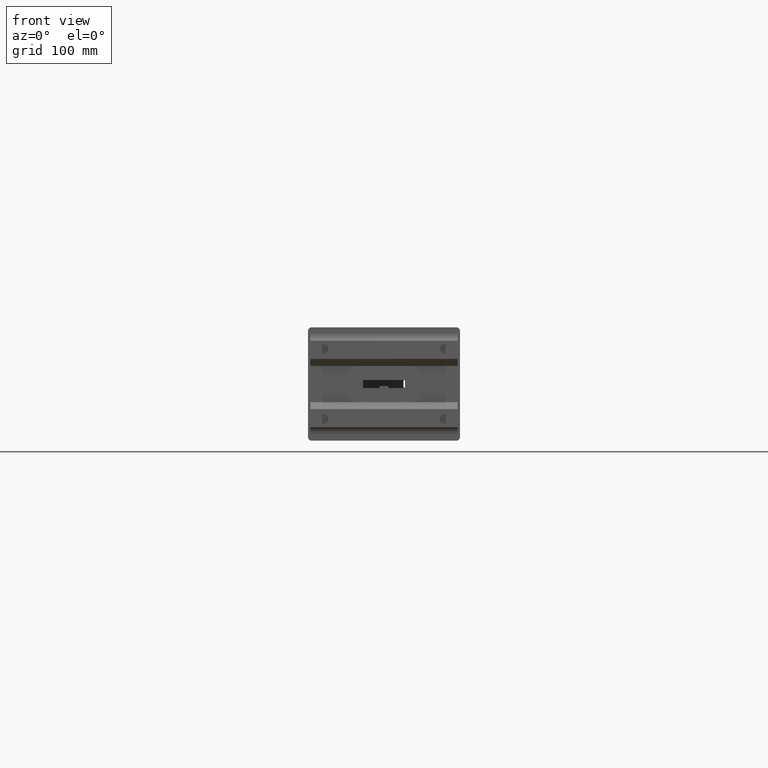
[diagram: clean part render]
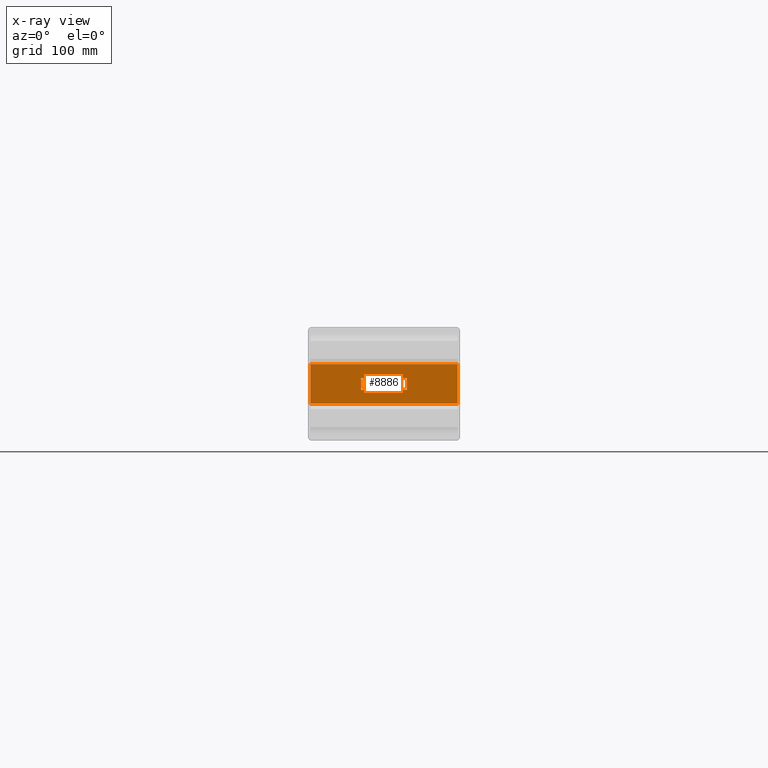
[diagram: x-ray — body ghosted, one internal face saturated and labeled with its STEP entity id]
A machine part, front view, then the same camera in x-ray: the body is ghosted and one INTERNAL B-rep face — a face not visible from any outside direction — is saturated and labeled: STEP entity #8886.
In plain terms, the highlighted planar face has unit normal (0, 1, 0).
Its self-contained STEP definition (entity closure, byte-faithful):
#559=FACE_BOUND('',#1528,.T.);
#1028=FACE_OUTER_BOUND('',#1527,.T.);
#1527=EDGE_LOOP('',(#6046,#6047,#6048,#6049));
#1528=EDGE_LOOP('',(#6050,#6051,#6052,#6053));
#2063=LINE('',#12411,#2876);
#2066=LINE('',#12417,#2879);
#2069=LINE('',#12423,#2882);
#2072=LINE('',#12427,#2885);
#2096=LINE('',#12484,#2909);
#2097=LINE('',#12487,#2910);
#2098=LINE('',#12489,#2911);
#2099=LINE('',#12490,#2912);
#2876=VECTOR('',#10267,10.);
#2879=VECTOR('',#10272,10.);
#2882=VECTOR('',#10277,10.);
#2885=VECTOR('',#10282,10.);
#2909=VECTOR('',#10332,10.);
#2910=VECTOR('',#10335,10.);
#2911=VECTOR('',#10336,10.);
#2912=VECTOR('',#10337,10.);
#3689=VERTEX_POINT('',#12408);
#3690=VERTEX_POINT('',#12410);
#3692=VERTEX_POINT('',#12416);
#3694=VERTEX_POINT('',#12422);
#3713=VERTEX_POINT('',#12480);
#3714=VERTEX_POINT('',#12482);
#3715=VERTEX_POINT('',#12486);
#3716=VERTEX_POINT('',#12488);
#4599=EDGE_CURVE('',#3690,#3689,#2063,.T.);
#4602=EDGE_CURVE('',#3692,#3690,#2066,.T.);
#4605=EDGE_CURVE('',#3694,#3692,#2069,.T.);
#4608=EDGE_CURVE('',#3689,#3694,#2072,.T.);
#4636=EDGE_CURVE('',#3713,#3714,#2096,.T.);
#4637=EDGE_CURVE('',#3713,#3715,#2097,.T.);
#4638=EDGE_CURVE('',#3716,#3714,#2098,.T.);
#4639=EDGE_CURVE('',#3715,#3716,#2099,.T.);
#6046=ORIENTED_EDGE('',*,*,#4637,.F.);
#6047=ORIENTED_EDGE('',*,*,#4636,.T.);
#6048=ORIENTED_EDGE('',*,*,#4638,.F.);
#6049=ORIENTED_EDGE('',*,*,#4639,.F.);
#6050=ORIENTED_EDGE('',*,*,#4605,.T.);
#6051=ORIENTED_EDGE('',*,*,#4602,.T.);
#6052=ORIENTED_EDGE('',*,*,#4599,.T.);
#6053=ORIENTED_EDGE('',*,*,#4608,.T.);
#8663=PLANE('',#9549);
#8886=ADVANCED_FACE('',(#1028,#559),#8663,.T.);
#9549=AXIS2_PLACEMENT_3D('',#12485,#10333,#10334);
#10267=DIRECTION('',(0.,0.,1.));
#10272=DIRECTION('',(1.,0.,0.));
#10277=DIRECTION('',(0.,0.,-1.));
#10282=DIRECTION('',(-1.,0.,0.));
#10332=DIRECTION('',(1.,0.,0.));
#10333=DIRECTION('center_axis',(0.,1.,0.));
#10334=DIRECTION('ref_axis',(0.,0.,1.));
#10335=DIRECTION('',(0.,0.,-1.));
#10336=DIRECTION('',(0.,0.,1.));
#10337=DIRECTION('',(1.,0.,0.));
#12408=CARTESIAN_POINT('',(85.25,14.4815115907096,5.25));
#12410=CARTESIAN_POINT('',(85.25,14.4815115907096,-5.25));
#12411=CARTESIAN_POINT('',(85.25,14.4815115907096,-11.3884373285297));
#12416=CARTESIAN_POINT('',(44.75,14.4815115907096,-5.25));
#12417=CARTESIAN_POINT('',(22.375,14.4815115907096,-5.25));
#12422=CARTESIAN_POINT('',(44.75,14.4815115907096,5.25));
#12423=CARTESIAN_POINT('',(44.75,14.4815115907096,-6.13843732852969));
#12427=CARTESIAN_POINT('',(42.625,14.4815115907096,5.25));
#12480=CARTESIAN_POINT('',(0.,14.4815115907096,17.5268746570594));
#12482=CARTESIAN_POINT('',(130.,14.4815115907096,17.5268746570594));
#12484=CARTESIAN_POINT('',(0.,14.4815115907096,17.5268746570594));
#12485=CARTESIAN_POINT('Origin',(0.,14.4815115907096,-17.5268746570594));
#12486=CARTESIAN_POINT('',(0.,14.4815115907096,-17.5268746570594));
#12487=CARTESIAN_POINT('',(0.,14.4815115907096,0.));
#12488=CARTESIAN_POINT('',(130.,14.4815115907096,-17.5268746570594));
#12489=CARTESIAN_POINT('',(130.,14.4815115907096,0.));
#12490=CARTESIAN_POINT('',(0.,14.4815115907096,-17.5268746570594));